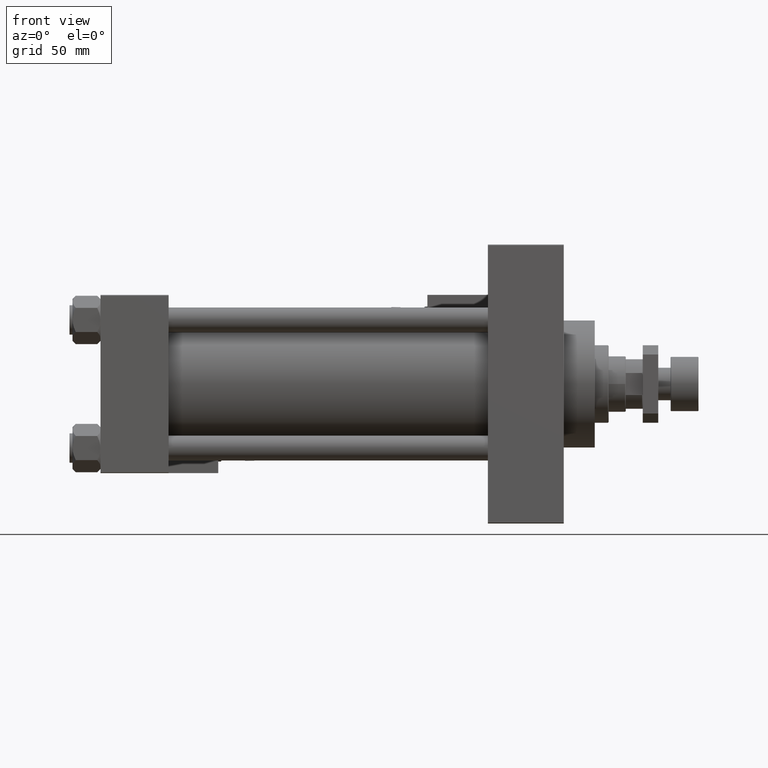
[diagram: clean part render]
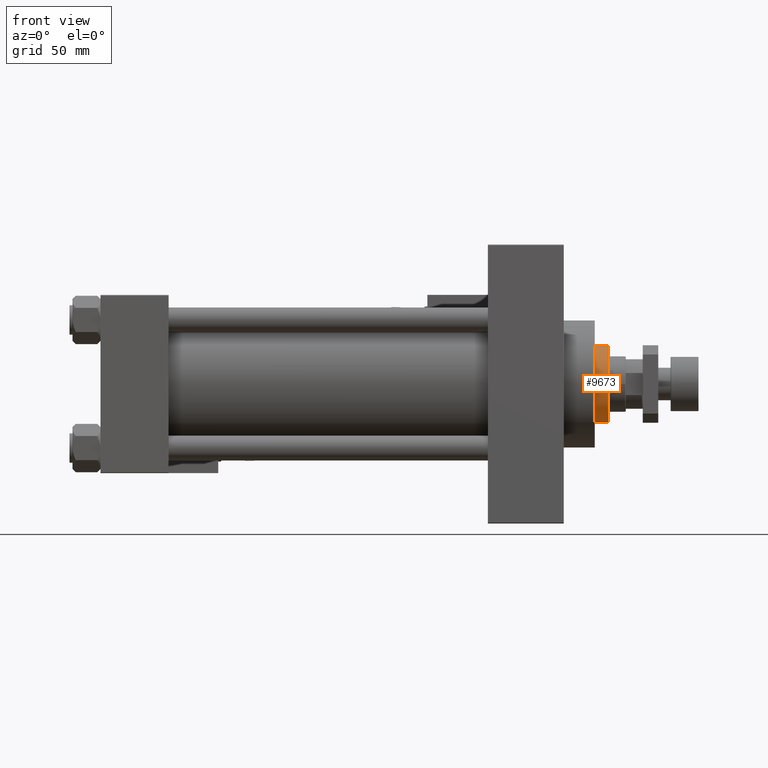
[diagram: same view with one face highlighted and labeled with its STEP entity id]
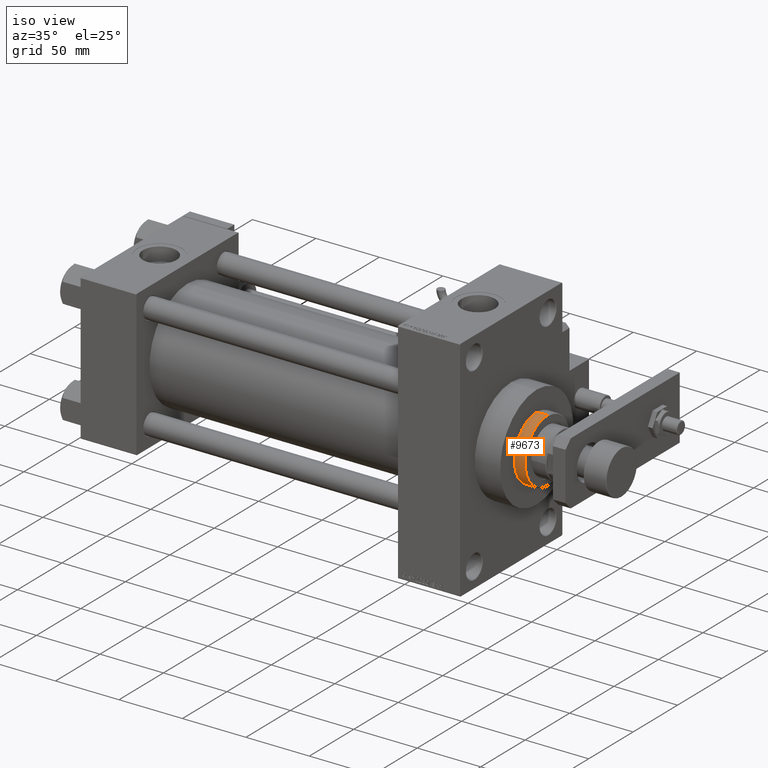
[diagram: same view with one face highlighted and labeled with its STEP entity id]
A machine part, front view. The second image highlights one B-rep face of the part: STEP entity #9673.
A second angle (iso view) of the same face is appended — the face is thin or edge-on in the first view.
In plain terms, the highlighted cylindrical surface (partial cylindrical patch) has radius 25 mm, axis along (-1, -0, 0).
Its self-contained STEP definition (entity closure, byte-faithful):
#1635 = DIRECTION ( 'NONE',  ( -0.000000000000000000, -0.000000000000000000, -1.000000000000000000 ) ) ;
#2184 = CYLINDRICAL_SURFACE ( 'NONE', #26046, 25.00000000000000000 ) ;
#4865 = DIRECTION ( 'NONE',  ( 0.000000000000000000, 0.000000000000000000, 1.000000000000000000 ) ) ;
#5089 = CIRCLE ( 'NONE', #17256, 25.00000000000000000 ) ;
#5733 = LINE ( 'NONE', #43853, #47595 ) ;
#7040 = ORIENTED_EDGE ( 'NONE', *, *, #31024, .T. ) ;
#9673 = ADVANCED_FACE ( 'NONE', ( #47390 ), #2184, .T. ) ;
#10092 = DIRECTION ( 'NONE',  ( -1.000000000000000000, 0.000000000000000000, 0.000000000000000000 ) ) ;
#10439 = VERTEX_POINT ( 'NONE', #38949 ) ;
#13609 = VECTOR ( 'NONE', #24711, 1000.000000000000000 ) ;
#17256 = AXIS2_PLACEMENT_3D ( 'NONE', #22241, #47025, #42937 ) ;
#18247 = DIRECTION ( 'NONE',  ( -0.000000000000000000, -0.000000000000000000, -1.000000000000000000 ) ) ;
#18809 = CARTESIAN_POINT ( 'NONE',  ( 0.000000000000000000, 0.000000000000000000, 52.25999999999999801 ) ) ;
#19560 = CIRCLE ( 'NONE', #39529, 25.00000000000000000 ) ;
#22241 = CARTESIAN_POINT ( 'NONE',  ( 0.000000000000000000, 0.000000000000000000, 51.75999999999996959 ) ) ;
#24711 = DIRECTION ( 'NONE',  ( -0.000000000000000000, -0.000000000000000000, -1.000000000000000000 ) ) ;
#25402 = VERTEX_POINT ( 'NONE', #37753 ) ;
#26046 = AXIS2_PLACEMENT_3D ( 'NONE', #18809, #1635, #10092 ) ;
#26083 = ORIENTED_EDGE ( 'NONE', *, *, #35357, .T. ) ;
#29102 = CARTESIAN_POINT ( 'NONE',  ( 0.000000000000000000, 0.000000000000000000, 43.25999999999999801 ) ) ;
#29375 = DIRECTION ( 'NONE',  ( 1.000000000000000000, 0.000000000000000000, 0.000000000000000000 ) ) ;
#31024 = EDGE_CURVE ( 'NONE', #42121, #10439, #48969, .T. ) ;
#33377 = EDGE_LOOP ( 'NONE', ( #39979, #47878, #7040, #26083 ) ) ;
#35357 = EDGE_CURVE ( 'NONE', #10439, #25402, #19560, .T. ) ;
#36699 = CARTESIAN_POINT ( 'NONE',  ( -25.00000000000000000, 0.000000000000000000, 52.25999999999999801 ) ) ;
#37148 = VERTEX_POINT ( 'NONE', #37862 ) ;
#37753 = CARTESIAN_POINT ( 'NONE',  ( 25.00000000000000000, 3.061616997868383043E-15, 43.25999999999999801 ) ) ;
#37862 = CARTESIAN_POINT ( 'NONE',  ( 25.00000000000000000, 3.061616997868383043E-15, 51.75999999999996959 ) ) ;
#38949 = CARTESIAN_POINT ( 'NONE',  ( -25.00000000000000000, 0.000000000000000000, 43.25999999999999801 ) ) ;
#39529 = AXIS2_PLACEMENT_3D ( 'NONE', #29102, #4865, #29375 ) ;
#39979 = ORIENTED_EDGE ( 'NONE', *, *, #43514, .F. ) ;
#40905 = CARTESIAN_POINT ( 'NONE',  ( -25.00000000000000000, 0.000000000000000000, 51.75999999999996959 ) ) ;
#42121 = VERTEX_POINT ( 'NONE', #40905 ) ;
#42937 = DIRECTION ( 'NONE',  ( 1.000000000000000000, 0.000000000000000000, 0.000000000000000000 ) ) ;
#43514 = EDGE_CURVE ( 'NONE', #37148, #25402, #5733, .T. ) ;
#43853 = CARTESIAN_POINT ( 'NONE',  ( 25.00000000000000000, 3.061616997868383043E-15, 52.25999999999999801 ) ) ;
#46215 = EDGE_CURVE ( 'NONE', #37148, #42121, #5089, .T. ) ;
#47025 = DIRECTION ( 'NONE',  ( 0.000000000000000000, 0.000000000000000000, -1.000000000000000000 ) ) ;
#47390 = FACE_OUTER_BOUND ( 'NONE', #33377, .T. ) ;
#47595 = VECTOR ( 'NONE', #18247, 1000.000000000000000 ) ;
#47878 = ORIENTED_EDGE ( 'NONE', *, *, #46215, .T. ) ;
#48969 = LINE ( 'NONE', #36699, #13609 ) ;